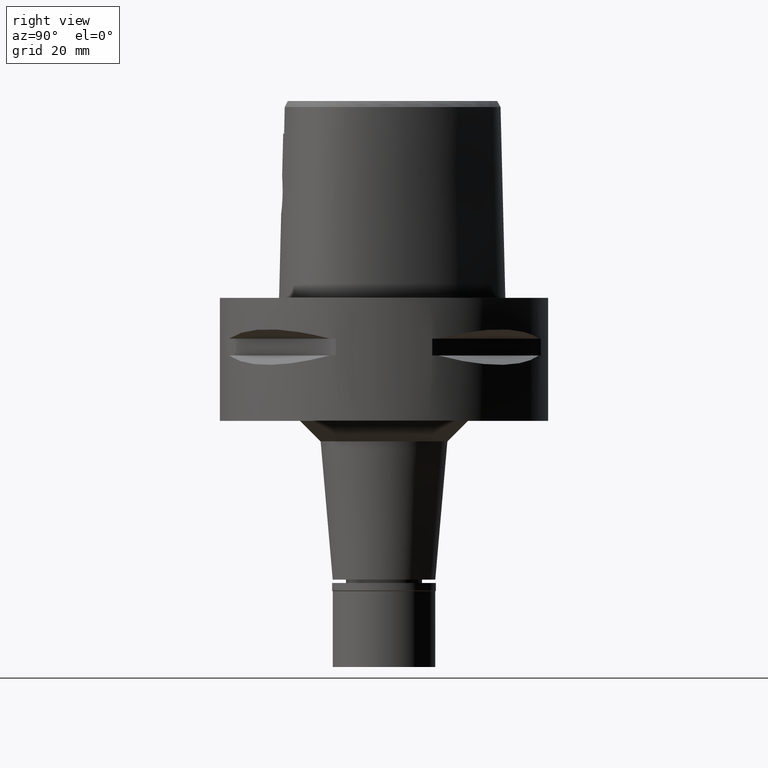
[diagram: clean part render]
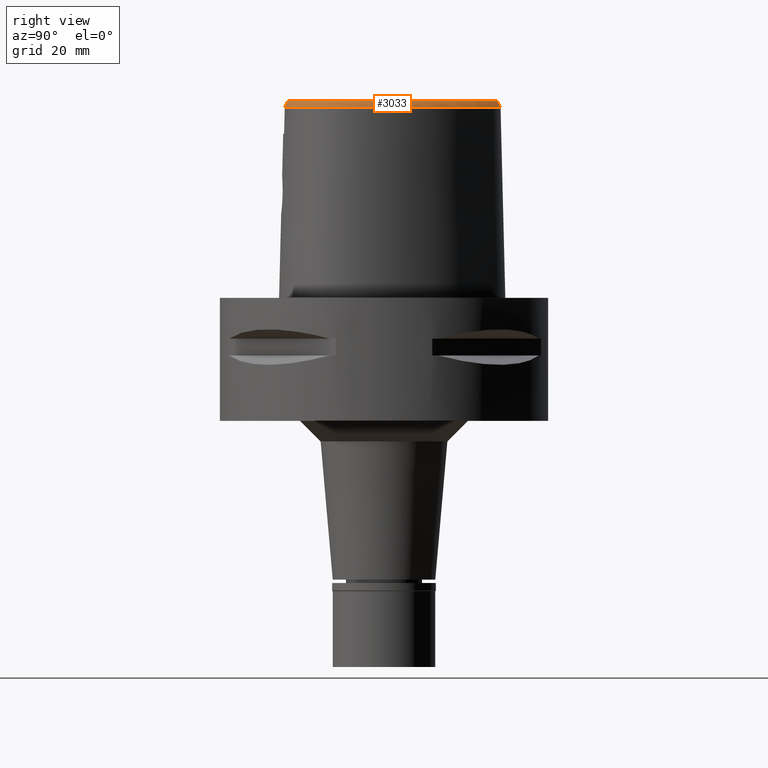
[diagram: same view with one face highlighted and labeled with its STEP entity id]
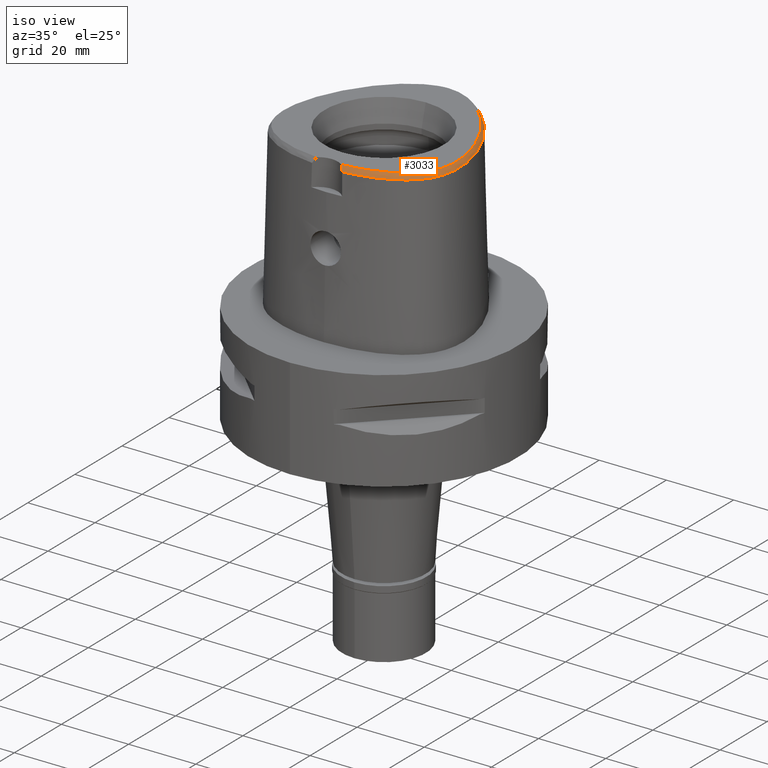
[diagram: same view with one face highlighted and labeled with its STEP entity id]
A machine part, right view. The second image highlights one B-rep face of the part: STEP entity #3033.
A second angle (iso view) of the same face is appended — the face is thin or edge-on in the first view.
In plain terms, the highlighted face is a freeform B-spline surface patch.
Its self-contained STEP definition (entity closure, byte-faithful):
#10 = CARTESIAN_POINT ( 'NONE',  ( 16.58774972841499107, 17.44522137221790459, 48.00000000001266898 ) ) ;
#14 = CARTESIAN_POINT ( 'NONE',  ( 26.72199824711000105, -6.339522308708999354, 46.33762905951999755 ) ) ;
#38 = CARTESIAN_POINT ( 'NONE',  ( 18.06021793802549524, -19.35923481219389330, 47.99999999999899103 ) ) ;
#43 = CARTESIAN_POINT ( 'NONE',  ( 11.70978320535079931, -23.05272019185293786, 46.52069240067355338 ) ) ;
#59 = CARTESIAN_POINT ( 'NONE',  ( 21.18145661121161538, -17.09850743469760204, 48.00000000000048317 ) ) ;
#63 = CARTESIAN_POINT ( 'NONE',  ( 26.56868348264874413, -7.988862950300866572, 46.52070085311216019 ) ) ;
#81 = CARTESIAN_POINT ( 'NONE',  ( 15.47311546589589426, 18.77848662925027412, 48.00000000000511591 ) ) ;
#106 = CARTESIAN_POINT ( 'NONE',  ( 26.18766393252000313, -2.722458958862000511, 46.95277247307000579 ) ) ;
#116 = CARTESIAN_POINT ( 'NONE',  ( 13.73651894225999825, -21.98480111503000245, 46.95277258296999889 ) ) ;
#130 = CARTESIAN_POINT ( 'NONE',  ( 26.08838743627999790, -9.324906502024001398, 46.95277224819000139 ) ) ;
#132 = EDGE_CURVE ( 'NONE', #325, #975, #4537, .T. ) ;
#148 = CARTESIAN_POINT ( 'NONE',  ( 2.123344836335999908, 27.30488519312999784, 48.18306024040000324 ) ) ;
#156 = CARTESIAN_POINT ( 'NONE',  ( 16.50764101233999881, 17.38113887889999987, 48.18306024286000167 ) ) ;
#171 = FACE_OUTER_BOUND ( 'NONE', #1272, .T. ) ;
#184 = CARTESIAN_POINT ( 'NONE',  ( 22.36327364575999965, 7.834998623928000505, 48.18305991191000004 ) ) ;
#215 = CARTESIAN_POINT ( 'NONE',  ( 8.176883771452999383, 25.34415459885000033, 47.56791630077000121 ) ) ;
#226 = CARTESIAN_POINT ( 'NONE',  ( 3.509405067850999593, -24.38576930704000034, 46.33763010242999769 ) ) ;
#241 = CARTESIAN_POINT ( 'NONE',  ( 8.352587848642999191, 25.64078214800999689, 46.95277242707999932 ) ) ;
#256 = CARTESIAN_POINT ( 'NONE',  ( 22.20181693358000174, -16.93688386382000033, 46.95277232475999796 ) ) ;
#263 = CARTESIAN_POINT ( 'NONE',  ( 2.181273731039000019, 27.64478309567999759, 47.56791614514000344 ) ) ;
#272 = CARTESIAN_POINT ( 'NONE',  ( 11.23088213894000020, 23.21926501307999757, 47.56791622777999606 ) ) ;
#273 = DIRECTION ( 'NONE',  ( -7.882119325832257551E-12, -0.4887572309465159082, 0.8724198353989288668 ) ) ;
#286 = CARTESIAN_POINT ( 'NONE',  ( 21.57451927660999758, -17.53443294356999971, 46.95277226740000032 ) ) ;
#299 = CARTESIAN_POINT ( 'NONE',  ( 5.551617870819000267, 27.03264404351000394, 46.95277233371000136 ) ) ;
#318 = CARTESIAN_POINT ( 'NONE',  ( 15.17018718039000014, -21.80839715075000385, 46.33762846201999963 ) ) ;
#325 = VERTEX_POINT ( 'NONE', #1724 ) ;
#342 = CARTESIAN_POINT ( 'NONE',  ( 16.24270003138000007, -20.96696787360999892, 46.95277264882999901 ) ) ;
#367 = CARTESIAN_POINT ( 'NONE',  ( 24.82285047723999938, -14.04423811661999899, 46.33762866785000512 ) ) ;
#383 = ORIENTED_EDGE ( 'NONE', *, *, #3513, .T. ) ;
#389 = CARTESIAN_POINT ( 'NONE',  ( 25.33687583871812876, -10.06999584063397357, 48.00000000001284661 ) ) ;
#392 = CARTESIAN_POINT ( 'NONE',  ( 25.57279824737999974, -10.12470245801000068, 47.56791624186999456 ) ) ;
#409 = CARTESIAN_POINT ( 'NONE',  ( 3.695072017992968139, -23.43648746218571688, 48.00000000000362377 ) ) ;
#412 = CARTESIAN_POINT ( 'NONE',  ( 25.68794770231000157, -6.317134212854000452, 48.18306011872999761 ) ) ;
#434 = CARTESIAN_POINT ( 'NONE',  ( 24.62320007857052317, -12.31148373401306628, 48.00000000000532197 ) ) ;
#458 = CARTESIAN_POINT ( 'NONE',  ( 15.99678577414673164, -20.43406366493044857, 48.00000000000532197 ) ) ;
#463 = CARTESIAN_POINT ( 'NONE',  ( 24.48700992949754607, 6.834036305490400309, 46.52070592457523190 ) ) ;
#482 = CARTESIAN_POINT ( 'NONE',  ( 25.74155027847655930, -7.352132003089502099, 48.00000000000483169 ) ) ;
#503 = CARTESIAN_POINT ( 'NONE',  ( 25.90867350629999777, -10.20258653600000009, 46.95277228431000083 ) ) ;
#512 = CARTESIAN_POINT ( 'NONE',  ( 2.760678900605070485, 28.19254769429962337, 46.52071606750159560 ) ) ;
#536 = CARTESIAN_POINT ( 'NONE',  ( 24.03909211415000158, 4.630130606424000206, 47.56791619615999878 ) ) ;
#562 = CARTESIAN_POINT ( 'NONE',  ( 20.95973208960000278, 11.36473638069000103, 47.56791630248000047 ) ) ;
#587 = CARTESIAN_POINT ( 'NONE',  ( 15.91543935197000259, 19.16418580575999897, 46.95277292811999814 ) ) ;
#588 = CARTESIAN_POINT ( 'NONE',  ( -1.216573165896999972E-11, 28.41206021534999593, 46.52071719450999154 ) ) ;
#590 = EDGE_CURVE ( 'NONE', #4112, #3710, #2988, .T. ) ;
#599 = CARTESIAN_POINT ( 'NONE',  ( 9.200716871412000231, -23.25072772643000008, 46.95277237284999927 ) ) ;
#607 = CARTESIAN_POINT ( 'NONE',  ( 1.474211960100999974, 28.09295188697000256, 46.95277188634999987 ) ) ;
#615 = CARTESIAN_POINT ( 'NONE',  ( 15.39579522543999879, 18.71106464728000063, 48.18306008688000475 ) ) ;
#629 = CARTESIAN_POINT ( 'NONE',  ( 10.81467387169999839, -22.87308689434000186, 46.95277236999999815 ) ) ;
#637 = CARTESIAN_POINT ( 'NONE',  ( -0.8011506932915000156, 28.14636852739000261, 46.95277185898000027 ) ) ;
#643 = CARTESIAN_POINT ( 'NONE',  ( 13.88918718717999923, 21.79495389434999808, 46.33763258539000418 ) ) ;
#655 = CARTESIAN_POINT ( 'NONE',  ( 17.34654380611999969, -20.42436813254999706, 46.95277237554999772 ) ) ;
#664 = ORIENTED_EDGE ( 'NONE', *, *, #132, .F. ) ;
#667 = CARTESIAN_POINT ( 'NONE',  ( 19.24765720649000045, 14.81091520304000042, 46.95277288078000311 ) ) ;
#681 = CARTESIAN_POINT ( 'NONE',  ( 17.18732898128999764, -20.11857754728999836, 47.56791627951000123 ) ) ;
#694 = CARTESIAN_POINT ( 'NONE',  ( 5.680632380631999823, 27.35237373851000342, 46.33762840517000114 ) ) ;
#713 = CARTESIAN_POINT ( 'NONE',  ( 14.78116888857999989, -20.85011063299000256, 48.18306018452999950 ) ) ;
#727 = B_SPLINE_SURFACE_WITH_KNOTS ( 'NONE', 3, 3, ( 
 ( #3377, #1751, #2176, #2571 ),
 ( #3352, #909, #4921, #1834 ),
 ( #4146, #964, #2957, #226 ),
 ( #3761, #1778, #4954, #2984 ),
 ( #3325, #2928, #4174, #935 ),
 ( #2520, #2122, #4562, #990 ),
 ( #1726, #2594, #599, #2205 ),
 ( #1017, #1811, #629, #3402 ),
 ( #4977, #4873, #1412, #3814 ),
 ( #4092, #3711, #116, #4507 ),
 ( #713, #1894, #2652, #318 ),
 ( #5039, #4700, #342, #2369 ),
 ( #1436, #681, #655, #2285 ),
 ( #1941, #3900, #3945, #3428 ),
 ( #1132, #3842, #4282, #5065 ),
 ( #5117, #2258, #2678, #1102 ),
 ( #4620, #3488, #5005, #1497 ),
 ( #4256, #2346, #286, #3923 ),
 ( #4334, #3152, #256, #3093 ),
 ( #1862, #3070, #4644, #3872 ),
 ( #3537, #764, #1159, #4671 ),
 ( #1917, #1555, #3458, #2703 ),
 ( #2322, #3039, #1074, #1473 ),
 ( #2756, #2734, #3512, #367 ),
 ( #5089, #4310, #1525, #3122 ),
 ( #1049, #740, #4729, #4231 ),
 ( #1579, #4137, #2396, #2442 ),
 ( #3971, #2019, #3724, #834 ),
 ( #4017, #392, #503, #4799 ),
 ( #4773, #5140, #130, #3607 ),
 ( #3174, #812, #2828, #2805 ),
 ( #4406, #1229, #1345, #3991 ),
 ( #412, #1970, #3585, #14 ),
 ( #1320, #3697, #1740, #3338 ),
 ( #3565, #2109, #1627, #4749 ),
 ( #4909, #2136, #106, #4382 ),
 ( #2418, #1716, #1183, #3226 ),
 ( #1207, #3313, #2778, #4883 ),
 ( #1993, #2915, #3199, #4494 ),
 ( #4357, #921, #2532, #4109 ),
 ( #5163, #536, #2943, #4522 ),
 ( #787, #953, #2563, #1602 ),
 ( #184, #1485, #3747, #1797 ),
 ( #2974, #3000, #4218, #4244 ),
 ( #4658, #562, #3775, #1849 ),
 ( #1427, #2220, #3024, #2274 ),
 ( #4967, #3417, #667, #4603 ),
 ( #4189, #4940, #2640, #1824 ),
 ( #156, #3392, #3080, #1767 ),
 ( #615, #2691, #587, #5052 ),
 ( #4552, #4991, #4576, #1376 ),
 ( #979, #1033, #3802, #643 ),
 ( #2584, #1402, #2246, #3856 ),
 ( #3443, #272, #3828, #3363 ),
 ( #2192, #1004, #1088, #5020 ),
 ( #3471, #2163, #2607, #1454 ),
 ( #4159, #215, #241, #3055 ),
 ( #4634, #1062, #2667, #1877 ),
 ( #4685, #5076, #2306, #1904 ),
 ( #3885, #1119, #299, #694 ),
 ( #3500, #1511, #3109, #4269 ),
 ( #1869, #3741, #1393, #3408 ),
 ( #4131, #4152, #3385, #3019 ),
 ( #148, #263, #4985, #3436 ),
 ( #1819, #2212, #607, #3074 ),
 ( #1419, #1789, #4569, #996 ),
 ( #971, #2578, #1840, #3768 ),
 ( #1758, #3358, #2602, #4180 ),
 ( #4543, #4596, #637, #5012 ) ),
 .UNSPECIFIED., .F., .F., .F.,
 ( 4, 1, 1, 1, 1, 1, 1, 1, 1, 1, 1, 1, 1, 1, 1, 1, 1, 1, 1, 1, 1, 1, 1, 1, 1, 1, 1, 1, 1, 1, 1, 1, 1, 1, 1, 1, 1, 1, 1, 1, 1, 1, 1, 1, 1, 1, 1, 1, 1, 1, 1, 1, 1, 1, 1, 1, 1, 1, 1, 1, 1, 1, 1, 1, 1, 1, 4 ),
 ( 4, 4 ),
 ( -0.006501344654137999890, 0.0000000000000000000, 0.001084806278982999904, 0.01694060300470999827, 0.03279639973041999917, 0.04865219645615000144, 0.06450799318185999887, 0.08036378990756999630, 0.09621958663328000760, 0.1120753833589999970, 0.1279311800848000058, 0.1437869768104999835, 0.1596427735361999889, 0.1754985702619000221, 0.1913543669875999997, 0.2072101637133000052, 0.2230659604390000106, 0.2389217571648000193, 0.2547775538904999970, 0.2706333506161999747, 0.2864891473419000079, 0.3023449440675999855, 0.3182007407932999632, 0.3340565375190999720, 0.3499123342448000051, 0.3657681309706000139, 0.3816239276962999916, 0.3974797244219999692, 0.4133355211477000024, 0.4291913178734000356, 0.4450471145992000443, 0.4609029113249000220, 0.4767587080505999997, 0.4926145047763000329, 0.5084703015020000105, 0.5243260982276999327, 0.5401818949534999970, 0.5560376916792000301, 0.5718934884048999523, 0.5877492851305999855, 0.6036050818563000187, 0.6194608785820000518, 0.6353166753076999740, 0.6511724720334999272, 0.6670282687592000714, 0.6828840654848999936, 0.6987398622106000268, 0.7145956589363000599, 0.7304514556619999821, 0.7463072523879000775, 0.7621630491135999996, 0.7780188458392999218, 0.7938746425650000660, 0.8097304392906999881, 0.8255862360164000213, 0.8414420327421000545, 0.8572978294679000077, 0.8731536261936000409, 0.8890094229192999631, 0.9048652196450001073, 0.9207210163707000294, 0.9365768130963999516, 0.9524326098222000159, 0.9682884065478999380, 0.9841442032736000822, 1.000000000000000000, 1.017074182962999895 ),
 ( -0.09975662837571999675, 1.099756628370999856 ),
 .UNSPECIFIED. ) ;
#740 = CARTESIAN_POINT ( 'NONE',  ( 24.84703911221999917, -12.40396723627000064, 47.56791640654999753 ) ) ;
#760 = CARTESIAN_POINT ( 'NONE',  ( 2.140583849880719924, 27.40603513869571017, 48.00000000000454037 ) ) ;
#764 = CARTESIAN_POINT ( 'NONE',  ( 23.01097280361000230, -15.51387359253000042, 47.56791641315000163 ) ) ;
#783 = CARTESIAN_POINT ( 'NONE',  ( 13.24267791556095020, 21.12418368643482935, 48.00000000000473932 ) ) ;
#787 = CARTESIAN_POINT ( 'NONE',  ( 23.08686609080999830, 6.156488972212000199, 48.18306005832999972 ) ) ;
#809 = CARTESIAN_POINT ( 'NONE',  ( 18.76051936065362824, 14.48366014233153010, 48.00000000000915890 ) ) ;
#812 = CARTESIAN_POINT ( 'NONE',  ( 25.88693768329999756, -8.348179054803999577, 47.56791631080000116 ) ) ;
#832 = CARTESIAN_POINT ( 'NONE',  ( 20.51253914625297270, -17.67119446945687145, 47.99999999999879918 ) ) ;
#834 = CARTESIAN_POINT ( 'NONE',  ( 26.02453410045999860, -11.12331440156000184, 46.33762842020999528 ) ) ;
#859 = CARTESIAN_POINT ( 'NONE',  ( 3.652533226355999751, -23.43985283522000174, 48.00000000000000000 ) ) ;
#886 = CARTESIAN_POINT ( 'NONE',  ( 4.472216720976999405, -24.20009030094000124, 46.52069014668999358 ) ) ;
#909 = CARTESIAN_POINT ( 'NONE',  ( 3.157863683335999649, -23.71962497851999885, 47.56791667803999957 ) ) ;
#921 = CARTESIAN_POINT ( 'NONE',  ( 24.57701325528000069, 3.020243424530000276, 47.56791627343999806 ) ) ;
#935 = CARTESIAN_POINT ( 'NONE',  ( 5.742604617459999616, -24.17674927239999860, 46.33762988131000071 ) ) ;
#953 = CARTESIAN_POINT ( 'NONE',  ( 23.40616258593000154, 6.286428874737000072, 47.56791657488000169 ) ) ;
#964 = CARTESIAN_POINT ( 'NONE',  ( 3.458281702155999948, -23.69840868987999727, 47.56791670340000167 ) ) ;
#971 = CARTESIAN_POINT ( 'NONE',  ( -0.01554638549924000288, 27.48776716651000029, 48.18306014953999750 ) ) ;
#975 = VERTEX_POINT ( 'NONE', #3114 ) ;
#979 = CARTESIAN_POINT ( 'NONE',  ( 13.17148438038999991, 21.05031853942999831, 48.18305973046000190 ) ) ;
#990 = CARTESIAN_POINT ( 'NONE',  ( 7.549363431478999686, -23.91374665293999868, 46.33762839910000508 ) ) ;
#996 = CARTESIAN_POINT ( 'NONE',  ( 0.7467815317059000035, 28.50050002023000317, 46.33762819041999848 ) ) ;
#1004 = CARTESIAN_POINT ( 'NONE',  ( 10.18167080938000169, 24.02202846596999919, 47.56791622741999248 ) ) ;
#1017 = CARTESIAN_POINT ( 'NONE',  ( 10.64344723475000087, -22.20522241395999785, 48.18306018445000660 ) ) ;
#1033 = CARTESIAN_POINT ( 'NONE',  ( 13.41071864931999968, 21.29853032439999794, 47.56791734877000266 ) ) ;
#1034 = EDGE_CURVE ( 'NONE', #975, #3710, #5155, .T. ) ;
#1049 = CARTESIAN_POINT ( 'NONE',  ( 24.52836657149000033, -12.27230140408999937, 48.18306012965000207 ) ) ;
#1062 = CARTESIAN_POINT ( 'NONE',  ( 7.225090607140000287, 25.87576401108999846, 47.56791646057000378 ) ) ;
#1074 = CARTESIAN_POINT ( 'NONE',  ( 24.15223387575999681, -14.50261982337000077, 46.95277221067999562 ) ) ;
#1088 = CARTESIAN_POINT ( 'NONE',  ( 10.38493013715999957, 24.30048453006999765, 46.95277224930000415 ) ) ;
#1102 = CARTESIAN_POINT ( 'NONE',  ( 20.32183851447999956, -18.99315743761000164, 46.33762886686000115 ) ) ;
#1119 = CARTESIAN_POINT ( 'NONE',  ( 5.422603361005999822, 26.71291434851000446, 47.56791626224999447 ) ) ;
#1132 = CARTESIAN_POINT ( 'NONE',  ( 18.90169100982000217, -18.71758865142999539, 48.18306008530000639 ) ) ;
#1159 = CARTESIAN_POINT ( 'NONE',  ( 23.28040224787000056, -15.72903614970999975, 46.95277269943999698 ) ) ;
#1165 = ORIENTED_EDGE ( 'NONE', *, *, #590, .T. ) ;
#1183 = CARTESIAN_POINT ( 'NONE',  ( 25.99028103263000133, -1.370259113269999940, 46.95277244887999757 ) ) ;
#1202 = CARTESIAN_POINT ( 'NONE',  ( 22.82172265264296840, -15.36274108902429525, 48.00000000000996891 ) ) ;
#1207 = CARTESIAN_POINT ( 'NONE',  ( 25.04104042713999689, -0.08892255976139999685, 48.18306012365999891 ) ) ;
#1209 = VECTOR ( 'NONE', #273, 1000.000000000000114 ) ;
#1210 = CARTESIAN_POINT ( 'NONE',  ( 5.530043876419373561, 27.35846726636021131, 46.52071494050976952 ) ) ;
#1227 = CARTESIAN_POINT ( 'NONE',  ( 23.18188527997950032, 6.195157684106435525, 48.00000000000257216 ) ) ;
#1229 = CARTESIAN_POINT ( 'NONE',  ( 25.98309796606999811, -7.369483540188999982, 47.56791649768000241 ) ) ;
#1231 = CARTESIAN_POINT ( 'NONE',  ( 26.53043812451372219, -3.252830914801609907, 46.52070254359984602 ) ) ;
#1251 = CARTESIAN_POINT ( 'NONE',  ( 5.331982176208748925, 26.48833275828607725, 48.00000000000887468 ) ) ;
#1272 = EDGE_LOOP ( 'NONE', ( #664, #383, #1165, #1496 ) ) ;
#1274 = CARTESIAN_POINT ( 'NONE',  ( 25.51037851176770488, -9.222789616917914657, 48.00000000001070077 ) ) ;
#1301 = CARTESIAN_POINT ( 'NONE',  ( 8.053467330374051159, 25.13580020532213410, 48.00000000000165556 ) ) ;
#1320 = CARTESIAN_POINT ( 'NONE',  ( 25.68555288495999989, -5.220950898080000790, 48.18306019558000486 ) ) ;
#1340 = CARTESIAN_POINT ( 'NONE',  ( -2.553072305009000136E-11, 27.58331912251000162, 48.00000000000000000 ) ) ;
#1345 = CARTESIAN_POINT ( 'NONE',  ( 26.32698175640000215, -7.394186373840999416, 46.95277290432000683 ) ) ;
#1376 = CARTESIAN_POINT ( 'NONE',  ( 15.02953139594999854, 20.64791021011999916, 46.33763206561999937 ) ) ;
#1393 = CARTESIAN_POINT ( 'NONE',  ( 3.841307640584999739, 27.62037112267000083, 46.95277279487999778 ) ) ;
#1402 = CARTESIAN_POINT ( 'NONE',  ( 12.30822962028999967, 22.31353206629000141, 47.56791689454999528 ) ) ;
#1412 = CARTESIAN_POINT ( 'NONE',  ( 12.32746842581000024, -22.44864378220000134, 46.95277260619999993 ) ) ;
#1419 = CARTESIAN_POINT ( 'NONE',  ( 0.6879033464941000098, 27.46775433194000016, 48.18306021443000020 ) ) ;
#1427 = CARTESIAN_POINT ( 'NONE',  ( 19.69724706120999969, 12.83628228625000034, 48.18306018077000630 ) ) ;
#1436 = CARTESIAN_POINT ( 'NONE',  ( 17.02811415645999915, -19.81278696201999878, 48.18306018347000474 ) ) ;
#1454 = CARTESIAN_POINT ( 'NONE',  ( 9.542122681402000595, 25.30417664808999945, 46.33762850088999841 ) ) ;
#1473 = CARTESIAN_POINT ( 'NONE',  ( 24.44406617003999926, -14.68627042078999878, 46.33762820987000453 ) ) ;
#1485 = CARTESIAN_POINT ( 'NONE',  ( 22.67687787410999789, 7.978125833694999613, 47.56791692048000186 ) ) ;
#1496 = ORIENTED_EDGE ( 'NONE', *, *, #1034, .F. ) ;
#1497 = CARTESIAN_POINT ( 'NONE',  ( 21.09917049873999773, -18.39507087911999861, 46.33762829428999908 ) ) ;
#1511 = CARTESIAN_POINT ( 'NONE',  ( 4.570038676029000158, 27.03060576698000261, 47.56791638493999841 ) ) ;
#1525 = CARTESIAN_POINT ( 'NONE',  ( 24.85707028512999983, -13.22628849134000006, 46.95277205106000196 ) ) ;
#1555 = CARTESIAN_POINT ( 'NONE',  ( 23.45964020565000041, -14.91816793271999941, 47.56791623864999963 ) ) ;
#1576 = CARTESIAN_POINT ( 'NONE',  ( 0.6937438505403740185, 27.57019898700858818, 48.00000000000216716 ) ) ;
#1579 = CARTESIAN_POINT ( 'NONE',  ( 24.79410616190000027, -11.57604015273000009, 48.18306015720000346 ) ) ;
#1598 = CARTESIAN_POINT ( 'NONE',  ( 10.66892483387040613, -22.30459704282489497, 48.00000000001320899 ) ) ;
#1602 = CARTESIAN_POINT ( 'NONE',  ( 24.04475557617000092, 6.546308679787999907, 46.33762960797000119 ) ) ;
#1623 = CARTESIAN_POINT ( 'NONE',  ( 25.60516200877592752, -2.794192459352862645, 48.00000000000223821 ) ) ;
#1627 = CARTESIAN_POINT ( 'NONE',  ( 26.31369873735000198, -3.999877707790999271, 46.95277260783999651 ) ) ;
#1650 = CARTESIAN_POINT ( 'NONE',  ( 17.07549476912042152, -19.90378693825529766, 48.00000000000360245 ) ) ;
#1670 = CARTESIAN_POINT ( 'NONE',  ( 14.81975810291339535, -20.94516920634621826, 48.00000000000746780 ) ) ;
#1675 = CARTESIAN_POINT ( 'NONE',  ( 26.66096789089045416, -6.450661550929212673, 46.52070141660802705 ) ) ;
#1694 = CARTESIAN_POINT ( 'NONE',  ( 25.79052179444744652, -6.319355031380182730, 48.00000000000711964 ) ) ;
#1716 = CARTESIAN_POINT ( 'NONE',  ( 25.65042946311000094, -1.428124408059999961, 47.56791630976999841 ) ) ;
#1724 = CARTESIAN_POINT ( 'NONE',  ( -1.216573165896999972E-11, 28.41206021534999593, 46.52071719450999154 ) ) ;
#1726 = CARTESIAN_POINT ( 'NONE',  ( 9.058506735308000657, -22.57609618808000462, 48.18306018394999768 ) ) ;
#1740 = CARTESIAN_POINT ( 'NONE',  ( 26.37481048827000052, -5.202028569490000365, 46.95277230630000531 ) ) ;
#1751 = CARTESIAN_POINT ( 'NONE',  ( 2.899497477101999898, -23.73568173681000104, 47.56791664955000698 ) ) ;
#1758 = CARTESIAN_POINT ( 'NONE',  ( -0.4990891172044000235, 27.47322065990000084, 48.18306019671000229 ) ) ;
#1767 = CARTESIAN_POINT ( 'NONE',  ( 17.31521785533999847, 18.02715519498000063, 46.33762793235999311 ) ) ;
#1778 = CARTESIAN_POINT ( 'NONE',  ( 4.381725379749999760, -23.62403718060999935, 47.56791673869999926 ) ) ;
#1789 = CARTESIAN_POINT ( 'NONE',  ( 0.7075294082313000610, 27.81200289470999820, 47.56791620642999874 ) ) ;
#1797 = CARTESIAN_POINT ( 'NONE',  ( 23.30408633080999792, 8.264380253229999695, 46.33763093761000107 ) ) ;
#1811 = CARTESIAN_POINT ( 'NONE',  ( 10.72906055322000185, -22.53915465414999986, 47.56791627722999749 ) ) ;
#1819 = CARTESIAN_POINT ( 'NONE',  ( 1.396353007862000117, 27.40775615666999698, 48.18306026899000472 ) ) ;
#1824 = CARTESIAN_POINT ( 'NONE',  ( 18.43968137459999923, 16.56059493467000010, 46.33762895136999305 ) ) ;
#1834 = CARTESIAN_POINT ( 'NONE',  ( 3.204474025329000053, -24.40730406671000097, 46.33763000485999584 ) ) ;
#1840 = CARTESIAN_POINT ( 'NONE',  ( -0.01660311546492999890, 28.17741658782999892, 46.95277256965000134 ) ) ;
#1849 = CARTESIAN_POINT ( 'NONE',  ( 21.56140456084999713, 11.70135394943000051, 46.33762855996000241 ) ) ;
#1862 = CARTESIAN_POINT ( 'NONE',  ( 22.25448058409000041, -15.87585623616999797, 48.18306017364000127 ) ) ;
#1869 = CARTESIAN_POINT ( 'NONE',  ( 3.652152766058000211, 26.95724377606000033, 48.18306011016999690 ) ) ;
#1877 = CARTESIAN_POINT ( 'NONE',  ( 7.546780378508999299, 26.48565761322999990, 46.33762916818000122 ) ) ;
#1884 = CARTESIAN_POINT ( 'NONE',  ( 4.386011657796000662, -24.10370619380000079, 46.70661588241999596 ) ) ;
#1894 = CARTESIAN_POINT ( 'NONE',  ( 14.91084165250999760, -21.16953947224999766, 47.56791627701999658 ) ) ;
#1904 = CARTESIAN_POINT ( 'NONE',  ( 6.597410729195000378, 26.95543469770000300, 46.33762890136999602 ) ) ;
#1917 = CARTESIAN_POINT ( 'NONE',  ( 23.17862735306000133, -14.71836519350000216, 48.18306020079000263 ) ) ;
#1941 = CARTESIAN_POINT ( 'NONE',  ( 18.00845567670000236, -19.27065188922999894, 48.18306015318000135 ) ) ;
#1970 = CARTESIAN_POINT ( 'NONE',  ( 26.03263121724999962, -6.324596911471999761, 47.56791643233000144 ) ) ;
#1990 = CARTESIAN_POINT ( 'NONE',  ( 11.07918744941202505, 23.03051546725432175, 48.00000000000645173 ) ) ;
#1993 = CARTESIAN_POINT ( 'NONE',  ( 24.68861395278999993, 1.380866567285999880, 48.18306018158000370 ) ) ;
#2019 = CARTESIAN_POINT ( 'NONE',  ( 25.36213368558999903, -10.93160350395999991, 47.56791626615000013 ) ) ;
#2041 = CARTESIAN_POINT ( 'NONE',  ( 19.77345709183311939, -18.23990985539677467, 48.00000000000171951 ) ) ;
#2048 = CARTESIAN_POINT ( 'NONE',  ( 17.84219066873169979, -20.48406917474746436, 46.52069465465715581 ) ) ;
#2066 = CARTESIAN_POINT ( 'NONE',  ( 23.81116373424417887, 4.548397580874523172, 48.00000000000844125 ) ) ;
#2071 = CARTESIAN_POINT ( 'NONE',  ( 25.61240997289474208, -12.23358473966203164, 46.52069916262439619 ) ) ;
#2087 = CARTESIAN_POINT ( 'NONE',  ( 12.15683615294367215, -21.88711351950601980, 48.00000000000370193 ) ) ;
#2109 = CARTESIAN_POINT ( 'NONE',  ( 25.96992796167999984, -4.025880543171000525, 47.56791637535999939 ) ) ;
#2118 = CARTESIAN_POINT ( 'NONE',  ( 6.913370730854801138, 26.74336904842474638, 46.52071437701388135 ) ) ;
#2122 = CARTESIAN_POINT ( 'NONE',  ( 7.435997206560999828, -23.23367956360999997, 47.56791626066999612 ) ) ;
#2136 = CARTESIAN_POINT ( 'NONE',  ( 25.84550096902999883, -2.764595381266000018, 47.56791631974999746 ) ) ;
#2163 = CARTESIAN_POINT ( 'NONE',  ( 9.162421204221999460, 24.72863326204999979, 47.56791628712999653 ) ) ;
#2176 = CARTESIAN_POINT ( 'NONE',  ( 2.920872246635999758, -24.07964123041000093, 46.95277327240000176 ) ) ;
#2192 = CARTESIAN_POINT ( 'NONE',  ( 9.978411481594999799, 23.74357240185999629, 48.18306020554999947 ) ) ;
#2205 = CARTESIAN_POINT ( 'NONE',  ( 9.271821939464000906, -23.58804349561000180, 46.33762846729999296 ) ) ;
#2212 = CARTESIAN_POINT ( 'NONE',  ( 1.435282483980999890, 27.75035402182000155, 47.56791607767000585 ) ) ;
#2220 = CARTESIAN_POINT ( 'NONE',  ( 19.99100783283000027, 13.01665735100000099, 47.56791628588999998 ) ) ;
#2246 = CARTESIAN_POINT ( 'NONE',  ( 12.53617664423000022, 22.57215403538000231, 46.95277386621000204 ) ) ;
#2258 = CARTESIAN_POINT ( 'NONE',  ( 19.91599242843000184, -18.43569401809000041, 47.56791638224999730 ) ) ;
#2274 = CARTESIAN_POINT ( 'NONE',  ( 20.57852937607000143, 13.37740748049000139, 46.33762849613999890 ) ) ;
#2285 = CARTESIAN_POINT ( 'NONE',  ( 17.50575863095000173, -20.73015871782000019, 46.33762847157999687 ) ) ;
#2306 = CARTESIAN_POINT ( 'NONE',  ( 6.452131101713000305, 26.64276619219999986, 46.95277264629999792 ) ) ;
#2313 = CARTESIAN_POINT ( 'NONE',  ( 4.472216720976999405, -24.20009030094000124, 46.52069014668999358 ) ) ;
#2322 = CARTESIAN_POINT ( 'NONE',  ( 23.56856928718999811, -14.13531862852000032, 48.18306021230000624 ) ) ;
#2346 = CARTESIAN_POINT ( 'NONE',  ( 21.34363336714000070, -17.27836930171999796, 47.56791623488999932 ) ) ;
#2361 = CARTESIAN_POINT ( 'NONE',  ( 3.747632102415999977, -23.51282364737999941, 47.85676715093000411 ) ) ;
#2366 = CARTESIAN_POINT ( 'NONE',  ( 2.897393261679704679, 27.25600202852703546, 48.00000000000159872 ) ) ;
#2369 = CARTESIAN_POINT ( 'NONE',  ( 16.38715062902999620, -21.27999702573000107, 46.33762890538999812 ) ) ;
#2392 = CARTESIAN_POINT ( 'NONE',  ( 22.45659887780410813, 7.877591736060505667, 48.00000000000268585 ) ) ;
#2396 = CARTESIAN_POINT ( 'NONE',  ( 25.44504359006000271, -11.80368228114999951, 46.95277252585000838 ) ) ;
#2415 = CARTESIAN_POINT ( 'NONE',  ( 25.72845965679678315, -4.044145215521722569, 48.00000000000938627 ) ) ;
#2418 = CARTESIAN_POINT ( 'NONE',  ( 25.31057789359000054, -1.485989702851000072, 48.18306017065999924 ) ) ;
#2419 = CARTESIAN_POINT ( 'NONE',  ( 23.08984995680363994, -16.35075897049260973, 46.52069719038874496 ) ) ;
#2439 = CARTESIAN_POINT ( 'NONE',  ( 24.34579675531306364, 2.948329282943804142, 48.00000000000919442 ) ) ;
#2442 = CARTESIAN_POINT ( 'NONE',  ( 25.77051230412999772, -11.91750334536000011, 46.33762871018000595 ) ) ;
#2443 = CARTESIAN_POINT ( 'NONE',  ( 10.99875819582644709, 24.38035098656050792, 46.52071268652618130 ) ) ;
#2464 = CARTESIAN_POINT ( 'NONE',  ( 20.74842146925000108, 11.24651447313522468, 48.00000000000479616 ) ) ;
#2489 = CARTESIAN_POINT ( 'NONE',  ( 7.112111422625127410, 25.66156608519618487, 48.00000000000291323 ) ) ;
#2516 = CARTESIAN_POINT ( 'NONE',  ( 1.375467128704392694, 28.41206022877313586, 46.52071663099749799 ) ) ;
#2520 = CARTESIAN_POINT ( 'NONE',  ( 7.379314094101999899, -22.89364601894000018, 48.18306019146000096 ) ) ;
#2532 = CARTESIAN_POINT ( 'NONE',  ( 24.90618886109000130, 3.122625309585000064, 46.95277236081999916 ) ) ;
#2563 = CARTESIAN_POINT ( 'NONE',  ( 23.72545908105000123, 6.416368777263000034, 46.95277309141999922 ) ) ;
#2571 = CARTESIAN_POINT ( 'NONE',  ( 2.942247016168999973, -24.42360072400999726, 46.33762989525000364 ) ) ;
#2578 = CARTESIAN_POINT ( 'NONE',  ( -0.01607475048208999863, 27.83259187716999961, 47.56791635959000075 ) ) ;
#2584 = CARTESIAN_POINT ( 'NONE',  ( 12.08028259635999824, 22.05491009720000051, 48.18305992289000272 ) ) ;
#2594 = CARTESIAN_POINT ( 'NONE',  ( 9.129611803359999556, -22.91341195725999924, 47.56791627839999848 ) ) ;
#2602 = CARTESIAN_POINT ( 'NONE',  ( -0.5271381053195000055, 28.16203252478999985, 46.95277229981999767 ) ) ;
#2607 = CARTESIAN_POINT ( 'NONE',  ( 9.352271942812000916, 25.01640495507000139, 46.95277239401000458 ) ) ;
#2640 = CARTESIAN_POINT ( 'NONE',  ( 18.16172494984999730, 16.35669861634000100, 46.95277267778999430 ) ) ;
#2652 = CARTESIAN_POINT ( 'NONE',  ( 15.04051441645000153, -21.48896831149999898, 46.95277236952000521 ) ) ;
#2667 = CARTESIAN_POINT ( 'NONE',  ( 7.385935492825000281, 26.18071081215999740, 46.95277281437000028 ) ) ;
#2678 = CARTESIAN_POINT ( 'NONE',  ( 20.11891547144999848, -18.71442572784999925, 46.95277262455000056 ) ) ;
#2691 = CARTESIAN_POINT ( 'NONE',  ( 15.65561728869999847, 18.93762522652000158, 47.56791650750000144 ) ) ;
#2703 = CARTESIAN_POINT ( 'NONE',  ( 24.02166591082999858, -15.31777341117000013, 46.33762831436000340 ) ) ;
#2734 = CARTESIAN_POINT ( 'NONE',  ( 24.21911566122000181, -13.71095016609000083, 47.56791633053000368 ) ) ;
#2756 = CARTESIAN_POINT ( 'NONE',  ( 23.91724825321000125, -13.54430619082000042, 48.18306016186000562 ) ) ;
#2778 = CARTESIAN_POINT ( 'NONE',  ( 25.71482056680000028, 0.05735396238465999968, 46.95277271770000027 ) ) ;
#2801 = CARTESIAN_POINT ( 'NONE',  ( 5.628119991152638946, -23.25222728397107730, 48.00000000000373035 ) ) ;
#2805 = CARTESIAN_POINT ( 'NONE',  ( 26.57129827083000251, -8.432632673280000546, 46.33762859195999795 ) ) ;
#2807 = CARTESIAN_POINT ( 'NONE',  ( 16.39076485916855574, -21.20751266143476244, 46.52069409116126764 ) ) ;
#2826 = CARTESIAN_POINT ( 'NONE',  ( 10.03889926274012012, 23.82643791975748471, 48.00000000001170974 ) ) ;
#2828 = CARTESIAN_POINT ( 'NONE',  ( 26.22911797707000048, -8.390405864042000061, 46.95277245137999955 ) ) ;
#2850 = CARTESIAN_POINT ( 'NONE',  ( 7.396182376302949280, -22.99483633013595707, 48.00000000000957812 ) ) ;
#2872 = CARTESIAN_POINT ( 'NONE',  ( 25.12949508357613126, -10.86427360166403666, 48.00000000000375877 ) ) ;
#2878 = CARTESIAN_POINT ( 'NONE',  ( 20.45409312013283554, -18.82869992194089903, 46.52069578164897479 ) ) ;
#2899 = CARTESIAN_POINT ( 'NONE',  ( 25.64658655007742283, -8.318518488027473623, 48.00000000000823519 ) ) ;
#2915 = CARTESIAN_POINT ( 'NONE',  ( 25.02193235750000255, 1.468844534488000120, 47.56791628395999538 ) ) ;
#2928 = CARTESIAN_POINT ( 'NONE',  ( 5.657876842992999755, -23.49252910194999799, 47.56791664593000490 ) ) ;
#2943 = CARTESIAN_POINT ( 'NONE',  ( 24.36358652758999810, 4.746491325502999459, 46.95277217352000321 ) ) ;
#2957 = CARTESIAN_POINT ( 'NONE',  ( 3.483843385004000037, -24.04208899846000236, 46.95277340290999746 ) ) ;
#2974 = CARTESIAN_POINT ( 'NONE',  ( 21.55042054435000054, 9.523696497164999997, 48.18305996406999725 ) ) ;
#2984 = CARTESIAN_POINT ( 'NONE',  ( 4.446821414094000779, -24.31027274194999777, 46.33763023825000005 ) ) ;
#2988 = B_SPLINE_CURVE_WITH_KNOTS ( 'NONE', 3,
 ( #3149, #4746, #1576, #4329, #760, #2366, #4040, #3222, #1251, #4817, #2489, #1301, #3290, #2826, #1990, #4404, #783, #4014, #81, #10, #4839, #809, #4061, #2464, #3671, #2392, #1227, #2066, #2439, #4770, #3968, #4865, #1623, #2415, #4379, #1694, #482, #2899, #1274, #389, #2872, #3988, #434, #3652, #4797, #3582, #3604, #1202, #5160, #3194, #59, #832, #2041, #3630, #38, #1650, #458, #1670, #4453, #2087, #1598, #3245, #2850, #2801, #4428, #409, #859 ),
 .UNSPECIFIED., .F., .F.,
 ( 4, 1, 1, 1, 1, 1, 1, 1, 1, 1, 1, 1, 1, 1, 1, 1, 1, 1, 1, 1, 1, 1, 1, 1, 1, 1, 1, 1, 1, 1, 1, 1, 1, 1, 1, 1, 1, 1, 1, 1, 1, 1, 1, 1, 1, 1, 1, 1, 1, 1, 1, 1, 1, 1, 1, 1, 1, 1, 1, 1, 1, 1, 1, 1, 4 ),
 ( 0.0000000000000000000, 0.01585579672639991777, 0.03171159345210006197, 0.04756739017779998413, 0.06342318690360004840, 0.07927898362929997056, 0.09513478035499989272, 0.1109905770807000369, 0.1268463738063999591, 0.1427021705320999923, 0.1585579672578999455, 0.1744137639835999787, 0.1902695607093000119, 0.2061253574349999340, 0.2219811541607000782, 0.2378369508864000004, 0.2536927476120999225, 0.2695485443380000179, 0.2854043410636999401, 0.3012601377893999732, 0.3171159345151000064, 0.3329717312407999286, 0.3488275279665000728, 0.3646833246923000260, 0.3805391214179999482, 0.3963949181436999813, 0.4122507148694000145, 0.4281065115951000477, 0.4439623083207999699, 0.4598181050465000030, 0.4756739017723000673, 0.4915296984979999895, 0.5073854952237000226, 0.5232412919494000558, 0.5390970886750999780, 0.5549528854007999001, 0.5708086821265999644, 0.5866644788522999976, 0.6025202755780000308, 0.6183760723036999529, 0.6342318690293999861, 0.6500876657551999394, 0.6659434624808999725, 0.6817992592067000368, 0.6976550559323999590, 0.7135108526580999921, 0.7293666493838000253, 0.7452224461095000585, 0.7610782428351999807, 0.7769340395610000449, 0.7927898362866999671, 0.8086456330124000003, 0.8245014297380999224, 0.8403572264637999556, 0.8562130231894999888, 0.8720688199152000220, 0.8879246166409999752, 0.9037804133667199924, 0.9196362100924300176, 0.9354920068181400428, 0.9513478035438499569, 0.9672036002695799661, 0.9830593969952899913, 0.9989151937210170029, 1.000000000000000000 ),
 .UNSPECIFIED. ) ;
#3000 = CARTESIAN_POINT ( 'NONE',  ( 21.85786321829000300, 9.679614497455999000, 47.56791679738999790 ) ) ;
#3019 = CARTESIAN_POINT ( 'NONE',  ( 3.104126713403999815, 28.16455331523999916, 46.33762880566000320 ) ) ;
#3024 = CARTESIAN_POINT ( 'NONE',  ( 20.28476860444999730, 13.19703241574000074, 46.95277239101999811 ) ) ;
#3033 = ADVANCED_FACE ( 'NONE', ( #171 ), #727, .F. ) ;
#3039 = CARTESIAN_POINT ( 'NONE',  ( 23.86040158147999790, -14.31896922594000010, 47.56791621149000093 ) ) ;
#3055 = CARTESIAN_POINT ( 'NONE',  ( 8.528291925832000686, 25.93740969717999789, 46.33762855338999742 ) ) ;
#3061 = CARTESIAN_POINT ( 'NONE',  ( 3.652533226355999751, -23.43985283522000174, 48.00000000000000000 ) ) ;
#3070 = CARTESIAN_POINT ( 'NONE',  ( 22.51163221954999827, -16.10554535201999826, 47.56791630272999782 ) ) ;
#3074 = CARTESIAN_POINT ( 'NONE',  ( 1.513141436221000058, 28.43554975210999913, 46.33762769503000101 ) ) ;
#3080 = CARTESIAN_POINT ( 'NONE',  ( 17.04602557434000332, 17.81181642295000245, 46.95277203586000070 ) ) ;
#3085 = CARTESIAN_POINT ( 'NONE',  ( 4.209591957338999713, -23.91901328737999677, 47.06412130101999480 ) ) ;
#3093 = CARTESIAN_POINT ( 'NONE',  ( 22.44608934612000084, -17.18021824779999918, 46.33762839096000619 ) ) ;
#3109 = CARTESIAN_POINT ( 'NONE',  ( 4.682138610598999939, 27.35665672221000122, 46.95277263106999754 ) ) ;
#3114 = CARTESIAN_POINT ( 'NONE',  ( 4.472216720976999405, -24.20009030094000124, 46.52069014668999358 ) ) ;
#3122 = CARTESIAN_POINT ( 'NONE',  ( 25.16787352310999992, -13.37559261324999937, 46.33762795648999600 ) ) ;
#3149 = CARTESIAN_POINT ( 'NONE',  ( -2.553072305009000136E-11, 27.58331912251000162, 48.00000000000000000 ) ) ;
#3152 = CARTESIAN_POINT ( 'NONE',  ( 21.95754452103999910, -16.69354947983999793, 47.56791625854999239 ) ) ;
#3174 = CARTESIAN_POINT ( 'NONE',  ( 25.54475738952999819, -8.305952245564999004, 48.18306017022000276 ) ) ;
#3194 = CARTESIAN_POINT ( 'NONE',  ( 21.78596494080717960, -16.52262878099660526, 48.00000000000382983 ) ) ;
#3199 = CARTESIAN_POINT ( 'NONE',  ( 25.35525076221000162, 1.556822501689000049, 46.95277238632999683 ) ) ;
#3222 = CARTESIAN_POINT ( 'NONE',  ( 4.491298471527523262, 26.80158405532057486, 48.00000000000877520 ) ) ;
#3226 = CARTESIAN_POINT ( 'NONE',  ( 26.33013260214999818, -1.312393818479000052, 46.33762858798999673 ) ) ;
#3229 = CARTESIAN_POINT ( 'NONE',  ( 26.04423705948790868, -10.88022456237881741, 46.52069972612030568 ) ) ;
#3245 = CARTESIAN_POINT ( 'NONE',  ( 9.079666835764486521, -22.67647771863653716, 48.00000000001045919 ) ) ;
#3269 = CARTESIAN_POINT ( 'NONE',  ( 24.69258566271341238, -14.08975149522597903, 46.52069831738052841 ) ) ;
#3290 = CARTESIAN_POINT ( 'NONE',  ( 9.029067995420124504, 24.52649931750080015, 48.00000000000949285 ) ) ;
#3297 = CARTESIAN_POINT ( 'NONE',  ( 23.53784508589975033, -15.81022840325032064, 46.52069747213668194 ) ) ;
#3313 = CARTESIAN_POINT ( 'NONE',  ( 25.37793049696999859, -0.01578429868836999858, 47.56791642067999959 ) ) ;
#3325 = CARTESIAN_POINT ( 'NONE',  ( 5.615512955758999780, -23.15041901672999813, 48.18306002823000256 ) ) ;
#3338 = CARTESIAN_POINT ( 'NONE',  ( 26.71943928993000128, -5.192567405194999708, 46.33762836164999754 ) ) ;
#3352 = CARTESIAN_POINT ( 'NONE',  ( 3.134558512340000380, -23.37578543443000356, 48.18306001463000143 ) ) ;
#3358 = CARTESIAN_POINT ( 'NONE',  ( -0.5131136112619000267, 27.81762659234000168, 47.56791624825999776 ) ) ;
#3363 = CARTESIAN_POINT ( 'NONE',  ( 11.66280798618999981, 23.75669851024999701, 46.33762827257999817 ) ) ;
#3377 = CARTESIAN_POINT ( 'NONE',  ( 2.878122707569000127, -23.39172224321000115, 48.18306002670000510 ) ) ;
#3385 = CARTESIAN_POINT ( 'NONE',  ( 3.027627073944000102, 27.82835302794000043, 46.95277258600000181 ) ) ;
#3392 = CARTESIAN_POINT ( 'NONE',  ( 16.77683329334000106, 17.59647765093000160, 47.56791613936000118 ) ) ;
#3402 = CARTESIAN_POINT ( 'NONE',  ( 10.90028719016999936, -23.20701913454000120, 46.33762846278000325 ) ) ;
#3408 = CARTESIAN_POINT ( 'NONE',  ( 3.935885077847999902, 27.95193479597000064, 46.33762913724000043 ) ) ;
#3417 = CARTESIAN_POINT ( 'NONE',  ( 18.96151132066999878, 14.61868483121000217, 47.56791648797000249 ) ) ;
#3428 = CARTESIAN_POINT ( 'NONE',  ( 18.53027159932000245, -20.16365730456000094, 46.33762874659000630 ) ) ;
#3436 = CARTESIAN_POINT ( 'NONE',  ( 2.297131520443000063, 28.32457890076999973, 46.33762795460999229 ) ) ;
#3443 = CARTESIAN_POINT ( 'NONE',  ( 11.01491921531999907, 22.95054826448999918, 48.18306020539000656 ) ) ;
#3458 = CARTESIAN_POINT ( 'NONE',  ( 23.74065305823999950, -15.11797067194999933, 46.95277227649999929 ) ) ;
#3471 = CARTESIAN_POINT ( 'NONE',  ( 8.972570465632999870, 24.44086156903000173, 48.18306018025000270 ) ) ;
#3488 = CARTESIAN_POINT ( 'NONE',  ( 20.66501640721000044, -17.85934447499000299, 47.56791623342000008 ) ) ;
#3500 = CARTESIAN_POINT ( 'NONE',  ( 4.457938741459999576, 26.70455481175999779, 48.18306013880999927 ) ) ;
#3512 = CARTESIAN_POINT ( 'NONE',  ( 24.52098306922999882, -13.87759414134999858, 46.95277249919000440 ) ) ;
#3513 = EDGE_CURVE ( 'NONE', #325, #4112, #3857, .T. ) ;
#3537 = CARTESIAN_POINT ( 'NONE',  ( 22.74154335934000315, -15.29871103534000021, 48.18306012685999917 ) ) ;
#3565 = CARTESIAN_POINT ( 'NONE',  ( 25.62615718601000125, -4.051883378551000447, 48.18306014286999783 ) ) ;
#3582 = CARTESIAN_POINT ( 'NONE',  ( 23.65541542675191167, -14.18997106324488655, 48.00000000001210054 ) ) ;
#3585 = CARTESIAN_POINT ( 'NONE',  ( 26.37731473218000389, -6.332059610091000046, 46.95277274593000527 ) ) ;
#3604 = CARTESIAN_POINT ( 'NONE',  ( 23.26225374360110010, -14.77782433121299732, 48.00000000000961364 ) ) ;
#3607 = CARTESIAN_POINT ( 'NONE',  ( 26.42791120174999975, -9.384890194104999139, 46.33762826942000146 ) ) ;
#3630 = CARTESIAN_POINT ( 'NONE',  ( 18.95779336836767115, -18.80349047535080942, 48.00000000000234479 ) ) ;
#3652 = CARTESIAN_POINT ( 'NONE',  ( 24.32795549673494051, -12.97211154200765293, 48.00000000001014655 ) ) ;
#3655 = CARTESIAN_POINT ( 'NONE',  ( 13.63304938779974051, 22.11238814014070186, 46.52071155953436232 ) ) ;
#3671 = CARTESIAN_POINT ( 'NONE',  ( 21.64191216433471965, 9.570096010441877965, 48.00000000000991918 ) ) ;
#3676 = CARTESIAN_POINT ( 'NONE',  ( 20.76159157987535053, 13.99289103072442941, 46.52070817855891249 ) ) ;
#3697 = CARTESIAN_POINT ( 'NONE',  ( 26.03018168660999976, -5.211489733785000134, 47.56791625094000153 ) ) ;
#3710 = VERTEX_POINT ( 'NONE', #4809 ) ;
#3711 = CARTESIAN_POINT ( 'NONE',  ( 13.62160639708000076, -21.65977585627999957, 47.56791636508999943 ) ) ;
#3724 = CARTESIAN_POINT ( 'NONE',  ( 25.69333389302000015, -11.02745895275999999, 46.95277234318000126 ) ) ;
#3741 = CARTESIAN_POINT ( 'NONE',  ( 3.746730203320999930, 27.28880744937000102, 47.56791645252999956 ) ) ;
#3747 = CARTESIAN_POINT ( 'NONE',  ( 22.99048210246000323, 8.121253043463001475, 46.95277392904999658 ) ) ;
#3761 = CARTESIAN_POINT ( 'NONE',  ( 4.349177362578000583, -23.28091939994000015, 48.18305998892999753 ) ) ;
#3768 = CARTESIAN_POINT ( 'NONE',  ( -0.01713148044778000159, 28.52224129849000178, 46.33762877969999749 ) ) ;
#3775 = CARTESIAN_POINT ( 'NONE',  ( 21.26056832523000040, 11.53304516505999899, 46.95277243121999788 ) ) ;
#3802 = CARTESIAN_POINT ( 'NONE',  ( 13.64995291824999946, 21.54674210937000112, 46.95277496708000342 ) ) ;
#3814 = CARTESIAN_POINT ( 'NONE',  ( 12.42769821350999848, -22.77848794398000010, 46.33762883773000141 ) ) ;
#3828 = CARTESIAN_POINT ( 'NONE',  ( 11.44684506257000045, 23.48798176166000218, 46.95277225017999712 ) ) ;
#3842 = CARTESIAN_POINT ( 'NONE',  ( 19.09021383988000053, -19.00624772695000075, 47.56791651121999820 ) ) ;
#3856 = CARTESIAN_POINT ( 'NONE',  ( 12.76412366815999988, 22.83077600446999966, 46.33763083787000170 ) ) ;
#3857 = LINE ( 'NONE', #588, #1209 ) ;
#3872 = CARTESIAN_POINT ( 'NONE',  ( 23.02593549046999755, -16.56492358374000418, 46.33762856090000071 ) ) ;
#3885 = CARTESIAN_POINT ( 'NONE',  ( 5.293588851193000266, 26.39318465351000143, 48.18306019079000180 ) ) ;
#3900 = CARTESIAN_POINT ( 'NONE',  ( 18.18239431756999736, -19.56832036100999872, 47.56791635098999649 ) ) ;
#3923 = CARTESIAN_POINT ( 'NONE',  ( 21.80540518607000067, -17.79049658542000145, 46.33762829992000576 ) ) ;
#3945 = CARTESIAN_POINT ( 'NONE',  ( 18.35633295843999591, -19.86598883279000205, 46.95277254879000139 ) ) ;
#3968 = CARTESIAN_POINT ( 'NONE',  ( 25.14129527416697485, -0.06715740301636695386, 48.00000000000309797 ) ) ;
#3971 = CARTESIAN_POINT ( 'NONE',  ( 25.03093347815999792, -10.83574805515000072, 48.18306018913000344 ) ) ;
#3988 = CARTESIAN_POINT ( 'NONE',  ( 24.89096213678408276, -11.60991207239382028, 48.00000000000508749 ) ) ;
#3991 = CARTESIAN_POINT ( 'NONE',  ( 26.67086554672999910, -7.418889207491999649, 46.33762931095999704 ) ) ;
#4014 = CARTESIAN_POINT ( 'NONE',  ( 14.35433142682893326, 20.00604447575093658, 47.99999999999939604 ) ) ;
#4017 = CARTESIAN_POINT ( 'NONE',  ( 25.23692298845999815, -10.04681838001999949, 48.18306019943000251 ) ) ;
#4040 = CARTESIAN_POINT ( 'NONE',  ( 3.680297990135986907, 27.05591354499700785, 48.00000000000552092 ) ) ;
#4061 = CARTESIAN_POINT ( 'NONE',  ( 19.78466709480181862, 12.88995995782109460, 48.00000000000601119 ) ) ;
#4089 = CARTESIAN_POINT ( 'NONE',  ( -1.216573165896999972E-11, 28.41206021534999593, 46.52071719450999154 ) ) ;
#4092 = CARTESIAN_POINT ( 'NONE',  ( 13.50669385188999883, -21.33475059751999936, 48.18306014721999730 ) ) ;
#4109 = CARTESIAN_POINT ( 'NONE',  ( 25.23536446690000190, 3.225007194640000296, 46.33762844820999760 ) ) ;
#4112 = VERTEX_POINT ( 'NONE', #1340 ) ;
#4131 = CARTESIAN_POINT ( 'NONE',  ( 2.874627795023000143, 27.15595245332999852, 48.18306014667999904 ) ) ;
#4137 = CARTESIAN_POINT ( 'NONE',  ( 25.11957487597999972, -11.68986121694000069, 47.56791634152000370 ) ) ;
#4146 = CARTESIAN_POINT ( 'NONE',  ( 3.432720019309000392, -23.35472838129999928, 48.18306000388000143 ) ) ;
#4152 = CARTESIAN_POINT ( 'NONE',  ( 2.951127434482999856, 27.49215274063999814, 47.56791636634000042 ) ) ;
#4159 = CARTESIAN_POINT ( 'NONE',  ( 8.001179694262999575, 25.04752704969000021, 48.18306017446000311 ) ) ;
#4174 = CARTESIAN_POINT ( 'NONE',  ( 5.700240730226999730, -23.83463918716999785, 46.95277326361999570 ) ) ;
#4180 = CARTESIAN_POINT ( 'NONE',  ( -0.5411625993770999843, 28.50643845722999714, 46.33762835137999758 ) ) ;
#4189 = CARTESIAN_POINT ( 'NONE',  ( 17.60581210036000144, 15.94890597967000012, 48.18306013064000126 ) ) ;
#4218 = CARTESIAN_POINT ( 'NONE',  ( 22.16530589223999925, 9.835532497746999780, 46.95277363069999410 ) ) ;
#4231 = CARTESIAN_POINT ( 'NONE',  ( 25.48438419368000041, -12.66729890062999964, 46.33762896033999112 ) ) ;
#4244 = CARTESIAN_POINT ( 'NONE',  ( 22.47274856619000261, 9.991450498038000561, 46.33763046402000185 ) ) ;
#4256 = CARTESIAN_POINT ( 'NONE',  ( 21.11274745767000027, -17.02230565986999977, 48.18306020237000098 ) ) ;
#4269 = CARTESIAN_POINT ( 'NONE',  ( 4.794238545168999721, 27.68270767743999627, 46.33762887720000379 ) ) ;
#4282 = CARTESIAN_POINT ( 'NONE',  ( 19.27873666993999890, -19.29490680246999901, 46.95277293714000422 ) ) ;
#4310 = CARTESIAN_POINT ( 'NONE',  ( 24.54626704716000063, -13.07698436943000075, 47.56791614563000081 ) ) ;
#4329 = CARTESIAN_POINT ( 'NONE',  ( 1.407937999592772549, 27.50970958195115301, 48.00000000000838440 ) ) ;
#4334 = CARTESIAN_POINT ( 'NONE',  ( 21.71327210850000000, -16.45021509586000263, 48.18306019235000548 ) ) ;
#4357 = CARTESIAN_POINT ( 'NONE',  ( 24.24783764947999742, 2.917861539475999688, 48.18306018604999963 ) ) ;
#4379 = CARTESIAN_POINT ( 'NONE',  ( 25.78811069501371023, -5.218135357747895497, 48.00000000000768807 ) ) ;
#4382 = CARTESIAN_POINT ( 'NONE',  ( 26.52982689600999677, -2.680322536457999671, 46.33762862639999724 ) ) ;
#4404 = CARTESIAN_POINT ( 'NONE',  ( 12.14811716929941454, 22.13187320258928992, 47.99999999999867129 ) ) ;
#4406 = CARTESIAN_POINT ( 'NONE',  ( 25.63921417574999850, -7.344780706537000547, 48.18306009104000509 ) ) ;
#4407 = CARTESIAN_POINT ( 'NONE',  ( 21.61408639850570168, -17.89738970854720534, 46.52069634514488428 ) ) ;
#4428 = CARTESIAN_POINT ( 'NONE',  ( 4.358863301033778725, -23.38302754646580794, 48.00000000000661515 ) ) ;
#4453 = CARTESIAN_POINT ( 'NONE',  ( 13.54089058450733063, -21.43147460488903633, 48.00000000000918732 ) ) ;
#4494 = CARTESIAN_POINT ( 'NONE',  ( 25.68856916690999626, 1.644800468890999845, 46.33762848870999562 ) ) ;
#4507 = CARTESIAN_POINT ( 'NONE',  ( 13.85143148745000197, -22.30982637378999556, 46.33762880084000102 ) ) ;
#4522 = CARTESIAN_POINT ( 'NONE',  ( 24.68808094103999906, 4.862852044580999511, 46.33762815088999787 ) ) ;
#4537 = B_SPLINE_CURVE_WITH_KNOTS ( 'NONE', 3,
 ( #4089, #2516, #512, #1210, #2118, #2443, #3655, #3676, #463, #4820, #1231, #1675, #63, #3229, #2071, #3269, #4843, #3297, #2419, #4407, #2878, #2048, #2807, #43, #5164, #886 ),
 .UNSPECIFIED., .F., .F.,
 ( 4, 2, 2, 2, 2, 2, 2, 2, 2, 2, 2, 2, 4 ),
 ( 0.0000000000000000000, 0.06250000000000000000, 0.1250000000000000000, 0.2500000000000000000, 0.5000000000000000000, 0.5625000000000000000, 0.6250000000000000000, 0.6875000000000000000, 0.7187500000000000000, 0.7500000000000000000, 0.8125000000000000000, 0.8750000000000000000, 1.000000000000000000 ),
 .UNSPECIFIED. ) ;
#4543 = CARTESIAN_POINT ( 'NONE',  ( -0.7593714704409999516, 27.45843960102000025, 48.18306027376999623 ) ) ;
#4552 = CARTESIAN_POINT ( 'NONE',  ( 14.27997847496999917, 19.93536228642999930, 48.18305978769000575 ) ) ;
#4562 = CARTESIAN_POINT ( 'NONE',  ( 7.492680319020000645, -23.57371310828000333, 46.95277232989000282 ) ) ;
#4569 = CARTESIAN_POINT ( 'NONE',  ( 0.7271554699686000323, 28.15625145746999891, 46.95277219841999994 ) ) ;
#4576 = CARTESIAN_POINT ( 'NONE',  ( 14.77968042228999934, 20.41039423556000187, 46.95277463964999498 ) ) ;
#4596 = CARTESIAN_POINT ( 'NONE',  ( -0.7802610818662999437, 27.80240406420999832, 47.56791606637000314 ) ) ;
#4603 = CARTESIAN_POINT ( 'NONE',  ( 19.53380309231999945, 15.00314557485999956, 46.33762927359000372 ) ) ;
#4620 = CARTESIAN_POINT ( 'NONE',  ( 20.44793936143999957, -17.59148127292000297, 48.18306020298999925 ) ) ;
#4634 = CARTESIAN_POINT ( 'NONE',  ( 7.064245721456000382, 25.57081721003000041, 48.18306010676000284 ) ) ;
#4644 = CARTESIAN_POINT ( 'NONE',  ( 22.76878385500999968, -16.33523446787999944, 46.95277243181000415 ) ) ;
#4658 = CARTESIAN_POINT ( 'NONE',  ( 20.65889585397000161, 11.19642759631000040, 48.18306017374000305 ) ) ;
#4663 = CARTESIAN_POINT ( 'NONE',  ( 3.935832465295999949, -23.66630429803999647, 47.55621523740000356 ) ) ;
#4671 = CARTESIAN_POINT ( 'NONE',  ( 23.54983169214000327, -15.94419870689999996, 46.33762898572999944 ) ) ;
#4685 = CARTESIAN_POINT ( 'NONE',  ( 6.161571846746999981, 26.01742918121000159, 48.18306013613999994 ) ) ;
#4700 = CARTESIAN_POINT ( 'NONE',  ( 16.09824943371999950, -20.65393872149000032, 47.56791639226999280 ) ) ;
#4729 = CARTESIAN_POINT ( 'NONE',  ( 25.16571165295000156, -12.53563306845000014, 46.95277268343999566 ) ) ;
#4746 = CARTESIAN_POINT ( 'NONE',  ( 0.2325907962420849517, 27.58331912251516727, 48.00000000000208900 ) ) ;
#4749 = CARTESIAN_POINT ( 'NONE',  ( 26.65746951301999701, -3.973874872409999703, 46.33762884033000518 ) ) ;
#4770 = CARTESIAN_POINT ( 'NONE',  ( 24.78780591084425211, 1.407047860335158829, 48.00000000000005684 ) ) ;
#4773 = CARTESIAN_POINT ( 'NONE',  ( 25.40933990536000309, -9.204939117860998721, 48.18306020573999859 ) ) ;
#4797 = CARTESIAN_POINT ( 'NONE',  ( 24.00708073425564493, -13.59389763843078214, 48.00000000000724754 ) ) ;
#4799 = CARTESIAN_POINT ( 'NONE',  ( 26.24454876521999935, -10.28047061398999951, 46.33762832674999999 ) ) ;
#4809 = CARTESIAN_POINT ( 'NONE',  ( 3.652533226355999751, -23.43985283522000174, 48.00000000000000000 ) ) ;
#4817 = CARTESIAN_POINT ( 'NONE',  ( 6.204805495149853023, 26.11047595223523388, 48.00000000000219558 ) ) ;
#4820 = CARTESIAN_POINT ( 'NONE',  ( 26.30769162470528499, -1.593520748820516308, 46.52070310709576972 ) ) ;
#4839 = CARTESIAN_POINT ( 'NONE',  ( 17.68852893097908918, 16.00958332232348269, 48.00000000000733280 ) ) ;
#4843 = CARTESIAN_POINT ( 'NONE',  ( 24.33934953590452466, -14.68006085516832471, 46.52069803563259853 ) ) ;
#4865 = CARTESIAN_POINT ( 'NONE',  ( 25.41171405094630487, -1.468769615953335883, 48.00000000001078604 ) ) ;
#4873 = CARTESIAN_POINT ( 'NONE',  ( 12.22723863811000022, -22.11879962041999903, 47.56791637467999578 ) ) ;
#4883 = CARTESIAN_POINT ( 'NONE',  ( 26.05171063663999931, 0.1304922234577000073, 46.33762901472000095 ) ) ;
#4909 = CARTESIAN_POINT ( 'NONE',  ( 25.50333800553000074, -2.806731803668999881, 48.18306016642000600 ) ) ;
#4921 = CARTESIAN_POINT ( 'NONE',  ( 3.181168854332999896, -24.06346452261999858, 46.95277334145000481 ) ) ;
#4940 = CARTESIAN_POINT ( 'NONE',  ( 17.88376852510999981, 16.15280229800000100, 47.56791640422000000 ) ) ;
#4954 = CARTESIAN_POINT ( 'NONE',  ( 4.414273396922000714, -23.96715496127999856, 46.95277348847000098 ) ) ;
#4967 = CARTESIAN_POINT ( 'NONE',  ( 18.67536543485000067, 14.42645445938999949, 48.18306009515999477 ) ) ;
#4977 = CARTESIAN_POINT ( 'NONE',  ( 12.12700885041000021, -21.78895545862999938, 48.18306014315000141 ) ) ;
#4985 = CARTESIAN_POINT ( 'NONE',  ( 2.239202625741000485, 27.98468099823000088, 46.95277204986999209 ) ) ;
#4991 = CARTESIAN_POINT ( 'NONE',  ( 14.52982944862999837, 20.17287826099000014, 47.56791721367000036 ) ) ;
#5005 = CARTESIAN_POINT ( 'NONE',  ( 20.88209345297000041, -18.12720767705999947, 46.95277226385000091 ) ) ;
#5012 = CARTESIAN_POINT ( 'NONE',  ( -0.8220403047166999766, 28.49033299057999713, 46.33762765158000008 ) ) ;
#5020 = CARTESIAN_POINT ( 'NONE',  ( 10.58818946493999924, 24.57894059417000321, 46.33762827117000427 ) ) ;
#5039 = CARTESIAN_POINT ( 'NONE',  ( 15.95379883606999982, -20.34090956935999728, 48.18306013569999635 ) ) ;
#5052 = CARTESIAN_POINT ( 'NONE',  ( 16.17526141523999783, 19.39074638499000258, 46.33762934873000461 ) ) ;
#5065 = CARTESIAN_POINT ( 'NONE',  ( 19.46725949998999639, -19.58356587799999815, 46.33762936306000313 ) ) ;
#5076 = CARTESIAN_POINT ( 'NONE',  ( 6.306851474230000143, 26.33009768670000383, 47.56791639121999538 ) ) ;
#5089 = CARTESIAN_POINT ( 'NONE',  ( 24.23546380918000054, -12.92768024751999967, 48.18306024020000677 ) ) ;
#5117 = CARTESIAN_POINT ( 'NONE',  ( 19.71306938540000075, -18.15696230832999802, 48.18306013994000381 ) ) ;
#5140 = CARTESIAN_POINT ( 'NONE',  ( 25.74886367082000049, -9.264922809943000104, 47.56791622696999866 ) ) ;
#5155 = B_SPLINE_CURVE_WITH_KNOTS ( 'NONE', 3,
 ( #2313, #1884, #3085, #4663, #2361, #3061 ),
 .UNSPECIFIED., .F., .F.,
 ( 4, 1, 1, 4 ),
 ( 0.0000000000000000000, 0.3333333333333000081, 0.6666666666667000474, 1.000000000000000000 ),
 .UNSPECIFIED. ) ;
#5160 = CARTESIAN_POINT ( 'NONE',  ( 22.33100613406773149, -15.94420923685362368, 48.00000000000865441 ) ) ;
#5163 = CARTESIAN_POINT ( 'NONE',  ( 23.71459770071000150, 4.513769887344999177, 48.18306021878999701 ) ) ;
#5164 = CARTESIAN_POINT ( 'NONE',  ( 8.153873202539035248, -23.84765792154017561, 46.52069127368169887 ) ) ;